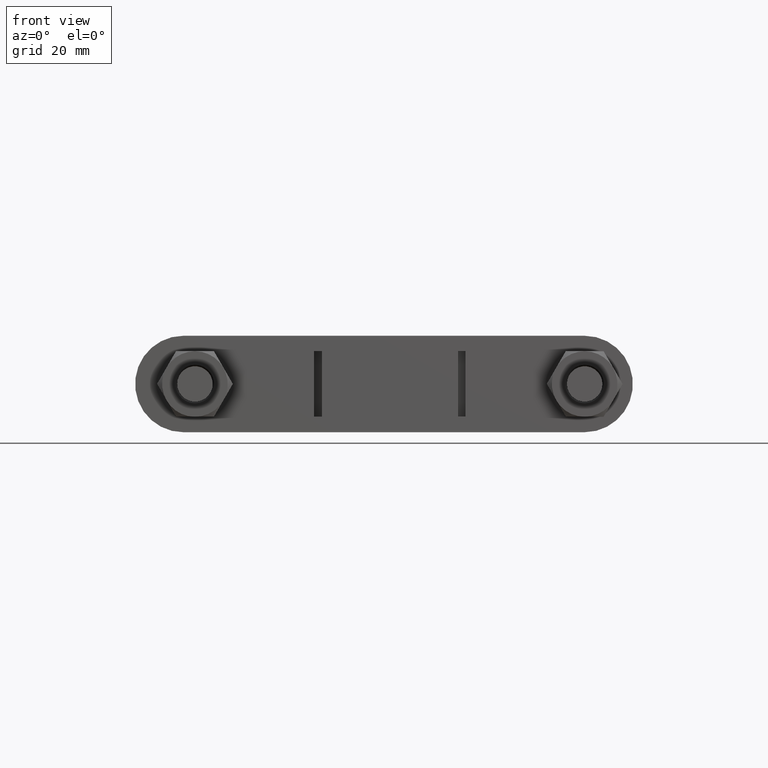
[diagram: clean part render]
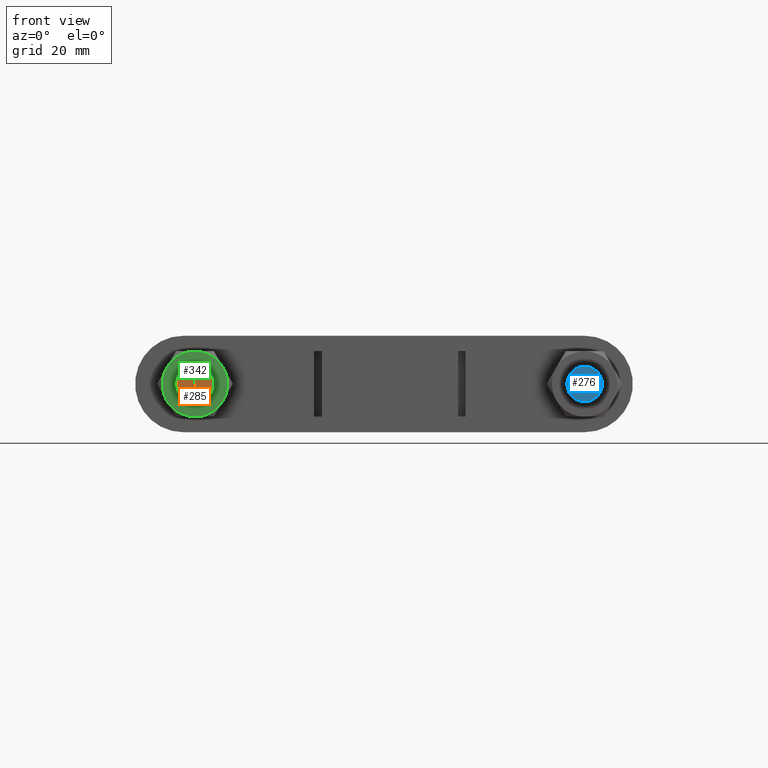
[diagram: same view with three faces highlighted in distinct colors, each labeled with its STEP entity id]
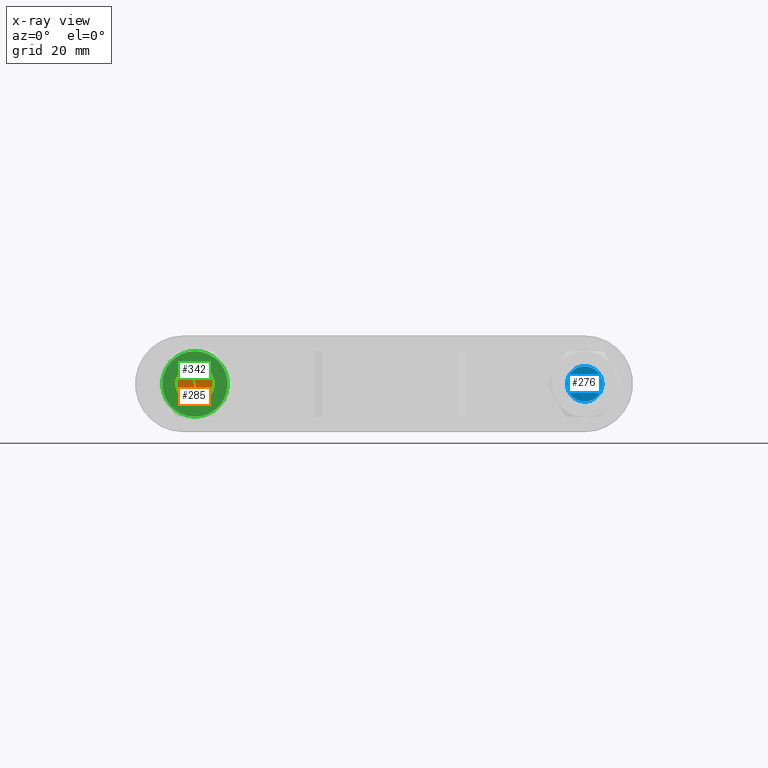
[diagram: x-ray of the same camera — body ghosted, the three highlighted faces saturated]
A machine part, front view with three faces highlighted in distinct colors.
The next image is the same camera in x-ray (body ghosted, the three faces saturated) — at least one of them is partly hidden behind the body in this view.
Their STEP definitions:

[orange] entity #285 — the highlighted planar face has unit normal (-0, -1, -0).
#285 = ADVANCED_FACE( '', ( #419 ), #420, .T. );
#419 = FACE_OUTER_BOUND( '', #831, .T. );
#420 = PLANE( '', #832 );
#831 = EDGE_LOOP( '', ( #1809 ) );
#832 = AXIS2_PLACEMENT_3D( '', #1810, #1811, #1812 );
#1809 = ORIENTED_EDGE( '', *, *, #2537, .T. );
#1810 = CARTESIAN_POINT( '', ( -50.5000000000000, 1.23685241736060E-014, 5.51072859220074E-017 ) );
#1811 = DIRECTION( '', ( -2.44921270764475E-016, -1.00000000000000, -6.12303176911189E-017 ) );
#1812 = DIRECTION( '', ( -1.00000000000000, 2.44921270764475E-016, 0.000000000000000 ) );
#2537 = EDGE_CURVE( '', #2789, #2789, #2790, .T. );
#2789 = VERTEX_POINT( '', #3219 );
#2790 = CIRCLE( '', #3220, 4.60000000000000 );
#3219 = CARTESIAN_POINT( '', ( -45.9000000000000, 1.12418863280894E-014, 5.51072859220073E-017 ) );
#3220 = AXIS2_PLACEMENT_3D( '', #4049, #4050, #4051 );
#4049 = CARTESIAN_POINT( '', ( -50.5000000000000, 1.23685241736060E-014, 5.51072859220074E-017 ) );
#4050 = DIRECTION( '', ( -2.44921270764475E-016, -1.00000000000000, -6.12303176911189E-017 ) );
#4051 = DIRECTION( '', ( 1.00000000000000, -2.44921270764475E-016, -1.01150562509412E-032 ) );

[blue] entity #276 — the highlighted planar face has unit normal (-0, -1, -0).
#276 = ADVANCED_FACE( '', ( #401 ), #402, .T. );
#401 = FACE_OUTER_BOUND( '', #813, .T. );
#402 = PLANE( '', #814 );
#813 = EDGE_LOOP( '', ( #1765 ) );
#814 = AXIS2_PLACEMENT_3D( '', #1766, #1767, #1768 );
#1765 = ORIENTED_EDGE( '', *, *, #2513, .T. );
#1766 = CARTESIAN_POINT( '', ( 50.5000000000000, -1.23685241736060E-014, 5.51072859220066E-017 ) );
#1767 = DIRECTION( '', ( -2.44921270764475E-016, -1.00000000000000, -6.12303176911189E-017 ) );
#1768 = DIRECTION( '', ( -1.00000000000000, 2.44921270764475E-016, 0.000000000000000 ) );
#2513 = EDGE_CURVE( '', #2755, #2755, #2756, .T. );
#2755 = VERTEX_POINT( '', #3143 );
#2756 = CIRCLE( '', #3144, 4.60000000000000 );
#3143 = CARTESIAN_POINT( '', ( 55.1000000000000, -1.34951620191226E-014, 5.51072859220066E-017 ) );
#3144 = AXIS2_PLACEMENT_3D( '', #4019, #4020, #4021 );
#4019 = CARTESIAN_POINT( '', ( 50.5000000000000, -1.23685241736060E-014, 5.51072859220066E-017 ) );
#4020 = DIRECTION( '', ( -2.44921270764476E-016, -1.00000000000000, -6.12303176911189E-017 ) );
#4021 = DIRECTION( '', ( 1.00000000000000, -2.44921270764476E-016, -7.49830360911070E-033 ) );

[green] entity #342 — the highlighted planar face has unit normal (0, 1, 0).
#342 = ADVANCED_FACE( '', ( #552, #553 ), #554, .F. );
#552 = FACE_OUTER_BOUND( '', #1619, .T. );
#553 = FACE_BOUND( '', #1620, .T. );
#554 = PLANE( '', #1621 );
#1619 = EDGE_LOOP( '', ( #2238, #2239, #2240, #2241, #2242, #2243 ) );
#1620 = EDGE_LOOP( '', ( #2244 ) );
#1621 = AXIS2_PLACEMENT_3D( '', #2245, #2246, #2247 );
#2238 = ORIENTED_EDGE( '', *, *, #2667, .F. );
#2239 = ORIENTED_EDGE( '', *, *, #2673, .F. );
#2240 = ORIENTED_EDGE( '', *, *, #2649, .F. );
#2241 = ORIENTED_EDGE( '', *, *, #2664, .F. );
#2242 = ORIENTED_EDGE( '', *, *, #2637, .F. );
#2243 = ORIENTED_EDGE( '', *, *, #2674, .F. );
#2244 = ORIENTED_EDGE( '', *, *, #2675, .T. );
#2245 = CARTESIAN_POINT( '', ( -50.5000000000000, 22.0000000000010, 1.40217427512668E-015 ) );
#2246 = DIRECTION( '', ( 1.49966072182213E-032, 1.00000000000000, 6.12303176911189E-017 ) );
#2247 = DIRECTION( '', ( 1.00000000000000, 2.73691106313441E-048, -2.44921270764475E-016 ) );
#2637 = EDGE_CURVE( '', #2958, #2960, #2961, .T. );
#2649 = EDGE_CURVE( '', #2975, #2982, #2983, .T. );
#2664 = EDGE_CURVE( '', #2960, #2975, #3009, .T. );
#2667 = EDGE_CURVE( '', #3013, #3014, #3015, .T. );
#2673 = EDGE_CURVE( '', #2982, #3013, #3023, .T. );
#2674 = EDGE_CURVE( '', #3014, #2958, #3024, .T. );
#2675 = EDGE_CURVE( '', #3025, #3025, #3026, .T. );
#2958 = VERTEX_POINT( '', #3670 );
#2960 = VERTEX_POINT( '', #3677 );
#2961 = CIRCLE( '', #3678, 8.50000000000000 );
#2975 = VERTEX_POINT( '', #3699 );
#2982 = VERTEX_POINT( '', #3718 );
#2983 = CIRCLE( '', #3719, 8.50000000000000 );
#3009 = CIRCLE( '', #3757, 8.50000000000000 );
#3013 = VERTEX_POINT( '', #3766 );
#3014 = VERTEX_POINT( '', #3767 );
#3015 = CIRCLE( '', #3768, 8.50000000000000 );
#3023 = CIRCLE( '', #3788, 8.50000000000000 );
#3024 = CIRCLE( '', #3789, 8.50000000000000 );
#3025 = VERTEX_POINT( '', #3790 );
#3026 = CIRCLE( '', #3791, 5.00000000000000 );
#3670 = CARTESIAN_POINT( '', ( -57.8612159324172, 22.0000000000010, -4.24999999956796 ) );
#3677 = CARTESIAN_POINT( '', ( -57.8612159319184, 22.0000000000009, 4.25000000043157 ) );
#3678 = AXIS2_PLACEMENT_3D( '', #4170, #4171, #4172 );
#3699 = CARTESIAN_POINT( '', ( -50.4999999995007, 22.0000000000006, 8.49999999999933 ) );
#3718 = CARTESIAN_POINT( '', ( -43.1387840675828, 22.0000000000010, 4.24999999956796 ) );
#3719 = AXIS2_PLACEMENT_3D( '', #4189, #4190, #4191 );
#3757 = AXIS2_PLACEMENT_3D( '', #4217, #4218, #4219 );
#3766 = CARTESIAN_POINT( '', ( -43.1387840680816, 22.0000000000009, -4.25000000043157 ) );
#3767 = CARTESIAN_POINT( '', ( -50.5000000002496, 22.0000000000010, -8.50000000014347 ) );
#3768 = AXIS2_PLACEMENT_3D( '', #4223, #4224, #4225 );
#3788 = AXIS2_PLACEMENT_3D( '', #4231, #4232, #4233 );
#3789 = AXIS2_PLACEMENT_3D( '', #4234, #4235, #4236 );
#3790 = CARTESIAN_POINT( '', ( -50.5000000000000, 22.0000000000010, 5.00000000000000 ) );
#3791 = AXIS2_PLACEMENT_3D( '', #4237, #4238, #4239 );
#4170 = CARTESIAN_POINT( '', ( -50.5000000000000, 22.0000000000010, 1.40217427512668E-015 ) );
#4171 = DIRECTION( '', ( 1.49966072182214E-032, 1.00000000000000, 6.12303176911189E-017 ) );
#4172 = DIRECTION( '', ( 0.000000000000000, -6.12303176911189E-017, 1.00000000000000 ) );
#4189 = CARTESIAN_POINT( '', ( -50.5000000000000, 22.0000000000010, 1.40217427512668E-015 ) );
#4190 = DIRECTION( '', ( 1.49966072182214E-032, 1.00000000000000, 6.12303176911189E-017 ) );
#4191 = DIRECTION( '', ( 0.000000000000000, -6.12303176911189E-017, 1.00000000000000 ) );
#4217 = CARTESIAN_POINT( '', ( -50.5000000000000, 22.0000000000010, 1.40217427512668E-015 ) );
#4218 = DIRECTION( '', ( 1.49966072182214E-032, 1.00000000000000, 6.12303176911189E-017 ) );
#4219 = DIRECTION( '', ( 0.000000000000000, -6.12303176911189E-017, 1.00000000000000 ) );
#4223 = CARTESIAN_POINT( '', ( -50.5000000000000, 22.0000000000010, 1.40217427512668E-015 ) );
#4224 = DIRECTION( '', ( 1.49966072182214E-032, 1.00000000000000, 6.12303176911189E-017 ) );
#4225 = DIRECTION( '', ( 0.000000000000000, -6.12303176911189E-017, 1.00000000000000 ) );
#4231 = CARTESIAN_POINT( '', ( -50.5000000000000, 22.0000000000010, 1.40217427512668E-015 ) );
#4232 = DIRECTION( '', ( 1.49966072182214E-032, 1.00000000000000, 6.12303176911189E-017 ) );
#4233 = DIRECTION( '', ( 0.000000000000000, -6.12303176911189E-017, 1.00000000000000 ) );
#4234 = CARTESIAN_POINT( '', ( -50.5000000000000, 22.0000000000010, 1.40217427512668E-015 ) );
#4235 = DIRECTION( '', ( 1.49966072182214E-032, 1.00000000000000, 6.12303176911189E-017 ) );
#4236 = DIRECTION( '', ( 0.000000000000000, -6.12303176911189E-017, 1.00000000000000 ) );
#4237 = CARTESIAN_POINT( '', ( -50.5000000000000, 22.0000000000010, 1.40217427512668E-015 ) );
#4238 = DIRECTION( '', ( 1.49966072182213E-032, 1.00000000000000, 6.12303176911189E-017 ) );
#4239 = DIRECTION( '', ( 0.000000000000000, -6.12303176911189E-017, 1.00000000000000 ) );